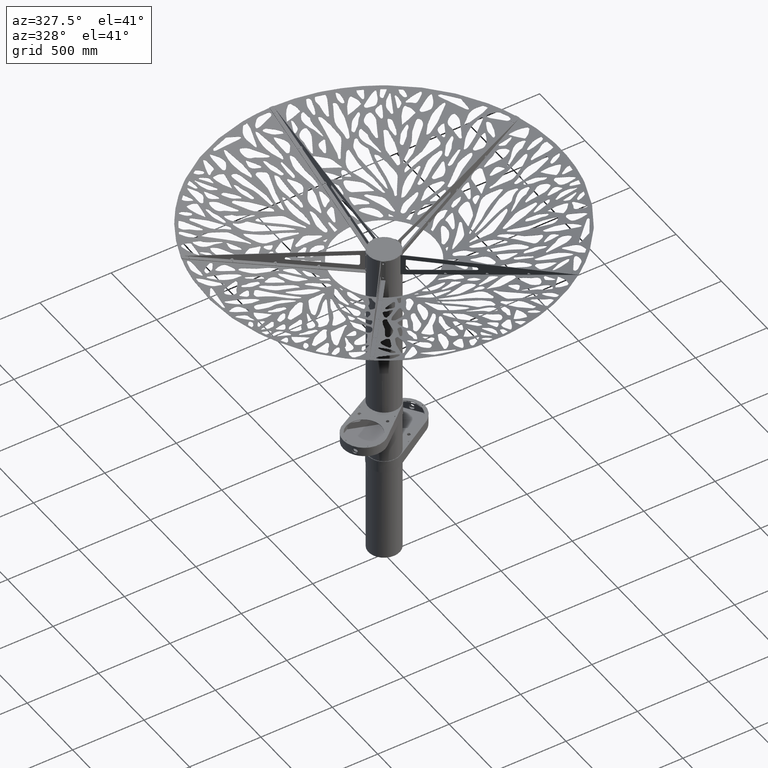
[diagram: clean part render]
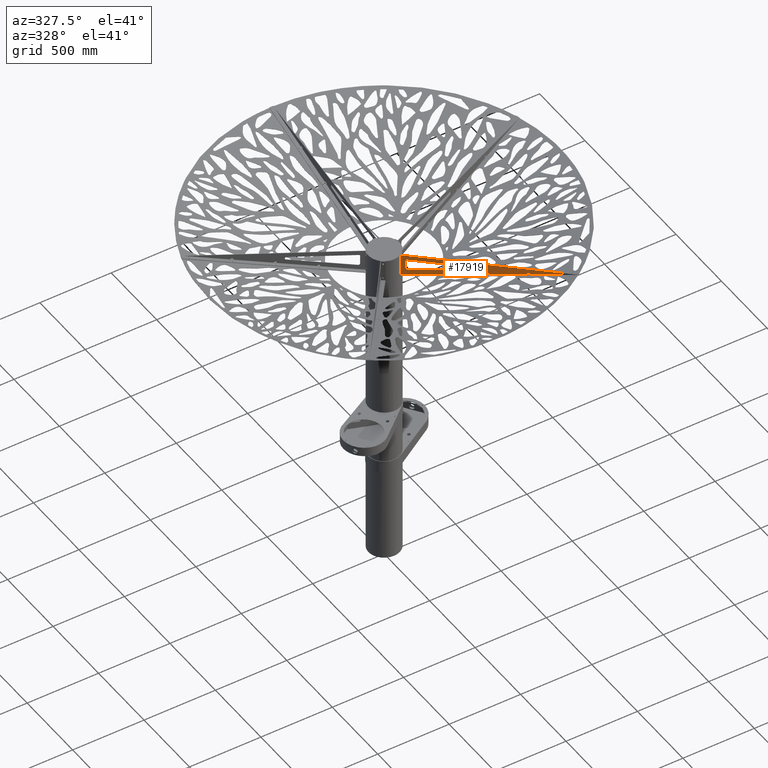
[diagram: same view with one face highlighted and labeled with its STEP entity id]
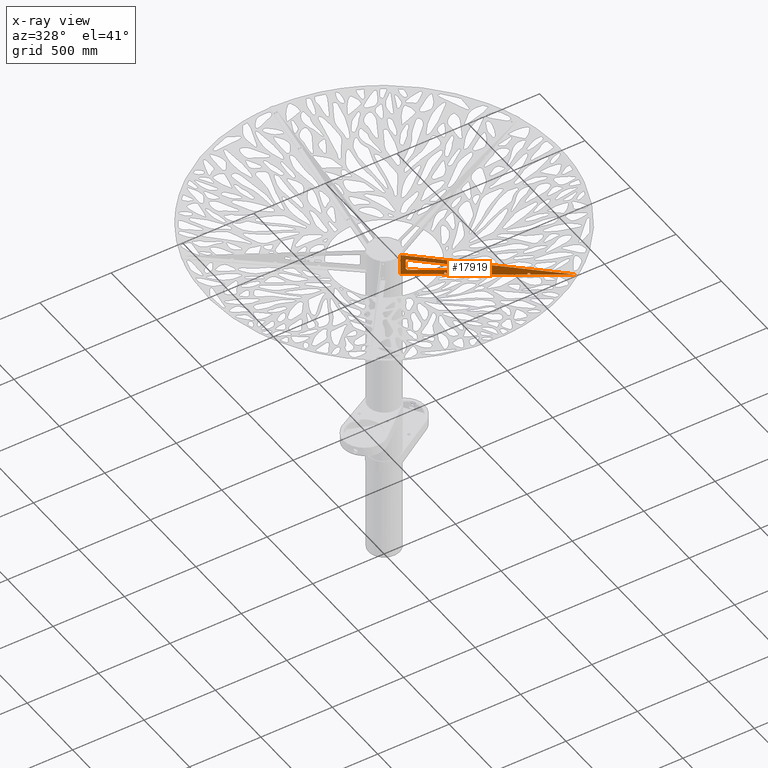
[diagram: x-ray of the same camera — body ghosted, the highlighted face saturated]
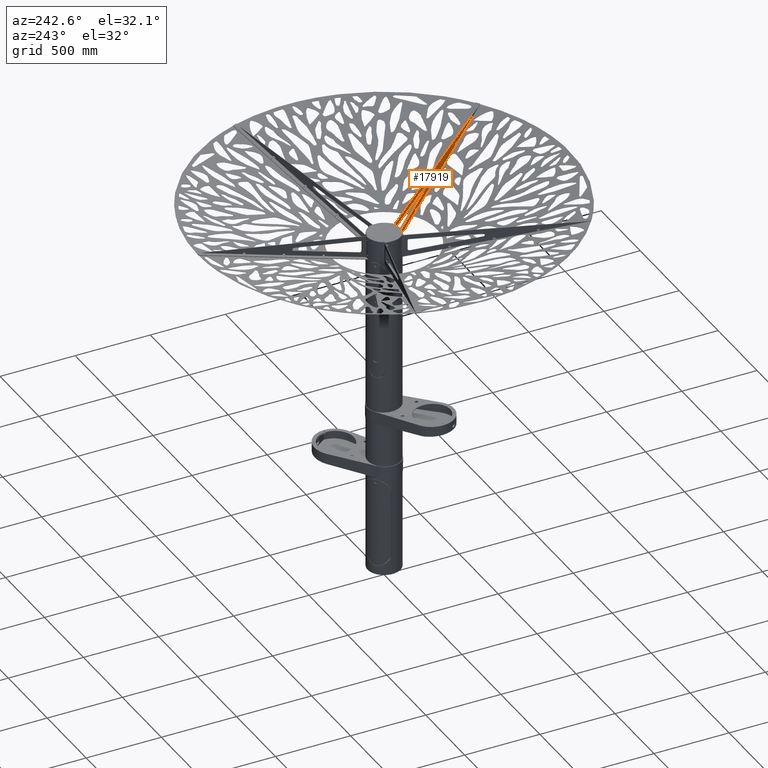
[diagram: same view with one face highlighted and labeled with its STEP entity id]
A machine part, auxiliary view. The second image highlights one B-rep face of the part: STEP entity #17919.
The next image is the same camera in x-ray: the body ghosted, the highlighted face saturated — about 0% of this face is hidden behind the body in this view.
A second angle (auxiliary view) of the same face is appended — the face is thin or edge-on in the first view.
In plain terms, the highlighted planar face has unit normal (0.809, 0.5878, 0).
Its self-contained STEP definition (entity closure, byte-faithful):
#18 = ORIENTED_EDGE ( 'NONE', *, *, #91109, .F. ) ;
#212 = VERTEX_POINT ( 'NONE', #16095 ) ;
#619 = CARTESIAN_POINT ( 'NONE',  ( -329.3151506300889650, 220.7821437993836184, 260.2254362326830233 ) ) ;
#627 = CARTESIAN_POINT ( 'NONE',  ( -124.1039514031340616, 71.68745865749943391, 353.5539966579350448 ) ) ;
#1065 = FACE_BOUND ( 'NONE', #89006, .T. ) ;
#1600 = DIRECTION ( 'NONE',  ( -0.5877853082349320246, -0.8090169537303689706, 0.000000000000000000 ) ) ;
#2447 = ORIENTED_EDGE ( 'NONE', *, *, #14208, .F. ) ;
#2615 = VERTEX_POINT ( 'NONE', #29585 ) ;
#3348 = ORIENTED_EDGE ( 'NONE', *, *, #20430, .F. ) ;
#3393 = CARTESIAN_POINT ( 'NONE',  ( -329.3151506300889650, 220.7821437993836184, 260.2254362326830233 ) ) ;
#4549 = CARTESIAN_POINT ( 'NONE',  ( -535.8592080316078636, 370.8452072297041013, 179.8007141444610397 ) ) ;
#4627 = CARTESIAN_POINT ( 'NONE',  ( -1011.482896244980452, 716.4060942930248075, -1.907812168868874503 ) ) ;
#4736 = EDGE_CURVE ( 'NONE', #77571, #15020, #59478, .T. ) ;
#4852 = CARTESIAN_POINT ( 'NONE',  ( -535.5101935955783574, 370.5916333621673289, 176.8952019672649953 ) ) ;
#5734 = CARTESIAN_POINT ( 'NONE',  ( -97.40639193003198670, 52.29054348574679523, 203.5539966579349880 ) ) ;
#7511 = CARTESIAN_POINT ( 'NONE',  ( -132.1941209404377275, 77.56531173984889449, 294.9480939190580102 ) ) ;
#7668 = CIRCLE ( 'NONE', #76660, 10.00000000000000355 ) ;
#8674 = EDGE_CURVE ( 'NONE', #82497, #87385, #44195, .T. ) ;
#9239 = VERTEX_POINT ( 'NONE', #30767 ) ;
#10976 = EDGE_LOOP ( 'NONE', ( #51188, #21643, #65362, #22550, #18802, #51377 ) ) ;
#11137 = CIRCLE ( 'NONE', #90631, 10.00000000000000711 ) ;
#11150 = LINE ( 'NONE', #4549, #43435 ) ;
#11235 = EDGE_CURVE ( 'NONE', #31535, #18586, #72118, .T. ) ;
#11552 = VERTEX_POINT ( 'NONE', #18576 ) ;
#11660 = VERTEX_POINT ( 'NONE', #5734 ) ;
#11747 = CARTESIAN_POINT ( 'NONE',  ( -97.40639193003200091, 52.29054348574680233, 353.5539966579350448 ) ) ;
#12269 = EDGE_CURVE ( 'NONE', #14124, #2615, #42250, .T. ) ;
#12829 = FACE_OUTER_BOUND ( 'NONE', #34550, .T. ) ;
#13757 = DIRECTION ( 'NONE',  ( -0.8090169537303694147, 0.5877853082349313585, 0.000000000000000000 ) ) ;
#14124 = VERTEX_POINT ( 'NONE', #4627 ) ;
#14208 = EDGE_CURVE ( 'NONE', #18147, #11552, #7668, .T. ) ;
#14319 = DIRECTION ( 'NONE',  ( -0.5877853082349320246, -0.8090169537303689706, 0.000000000000000000 ) ) ;
#15020 = VERTEX_POINT ( 'NONE', #81062 ) ;
#15392 = DIRECTION ( 'NONE',  ( 0.8090169537303678604, -0.5877853082349335789, 0.000000000000000000 ) ) ;
#16095 = CARTESIAN_POINT ( 'NONE',  ( -124.1039514031339337, 71.68745865749944812, 236.3905626378430043 ) ) ;
#16288 = DIRECTION ( 'NONE',  ( 0.8090169537303705249, -0.5877853082349299152, 0.000000000000000000 ) ) ;
#16808 = VERTEX_POINT ( 'NONE', #17295 ) ;
#17025 = CARTESIAN_POINT ( 'NONE',  ( -551.2929601815916385, 382.0584861639339351, 173.7989085731329055 ) ) ;
#17295 = CARTESIAN_POINT ( 'NONE',  ( -765.5781726843849810, 537.7458288090674614, 90.46867430771490604 ) ) ;
#17919 = ADVANCED_FACE ( 'NONE', ( #12829, #1065, #51320, #29671, #29209 ), #49917, .F. ) ;
#18147 = VERTEX_POINT ( 'NONE', #89391 ) ;
#18205 = CARTESIAN_POINT ( 'NONE',  ( -543.6003631328820802, 376.4694864445166900, 176.8952019672649953 ) ) ;
#18576 = CARTESIAN_POINT ( 'NONE',  ( -750.1444205344012062, 526.5325498748371729, 96.47047987904316813 ) ) ;
#18586 = VERTEX_POINT ( 'NONE', #4852 ) ;
#18802 = ORIENTED_EDGE ( 'NONE', *, *, #34846, .F. ) ;
#20101 = VECTOR ( 'NONE', #77250, 999.9999999999998863 ) ;
#20170 = VECTOR ( 'NONE', #46028, 999.9999999999998863 ) ;
#20430 = EDGE_CURVE ( 'NONE', #9239, #61917, #64878, .T. ) ;
#21483 = AXIS2_PLACEMENT_3D ( 'NONE', #18205, #87945, #44682 ) ;
#21643 = ORIENTED_EDGE ( 'NONE', *, *, #21738, .F. ) ;
#21738 = EDGE_CURVE ( 'NONE', #212, #34013, #85233, .T. ) ;
#22550 = ORIENTED_EDGE ( 'NONE', *, *, #4736, .F. ) ;
#22733 = CARTESIAN_POINT ( 'NONE',  ( -489.0345442394131510, 336.8250926781054204, 156.1816539880389882 ) ) ;
#23624 = CARTESIAN_POINT ( 'NONE',  ( -337.0077476787979549, 226.3711435188004941, 257.1291428385507629 ) ) ;
#25479 = VERTEX_POINT ( 'NONE', #28231 ) ;
#25806 = AXIS2_PLACEMENT_3D ( 'NONE', #92251, #71997, #13757 ) ;
#27584 = CIRCLE ( 'NONE', #56135, 10.00000000000000355 ) ;
#27842 = DIRECTION ( 'NONE',  ( 0.8090169537303690817, -0.5877853082349316916, 0.000000000000000000 ) ) ;
#28231 = CARTESIAN_POINT ( 'NONE',  ( -535.8592080316077499, 370.8452072297038171, 179.8007141444610397 ) ) ;
#28307 = DIRECTION ( 'NONE',  ( -0.5877853082349309144, -0.8090169537303697478, 1.694065894508599754E-17 ) ) ;
#29209 = FACE_BOUND ( 'NONE', #10976, .T. ) ;
#29244 = DIRECTION ( 'NONE',  ( -1.164236848858976974E-32, -1.602434316898700134E-32, 1.000000000000000000 ) ) ;
#29585 = CARTESIAN_POINT ( 'NONE',  ( -97.40639193003194407, 52.29054348574667443, 353.5539966579351017 ) ) ;
#29605 = CARTESIAN_POINT ( 'NONE',  ( -134.6220235687030709, 79.32928650964690576, 304.4871547658689792 ) ) ;
#29671 = FACE_BOUND ( 'NONE', #86739, .T. ) ;
#30253 = DIRECTION ( 'NONE',  ( 0.8090169537303678604, -0.5877853082349335789, 0.000000000000000000 ) ) ;
#30307 = EDGE_CURVE ( 'NONE', #2615, #11660, #61560, .T. ) ;
#30478 = AXIS2_PLACEMENT_3D ( 'NONE', #7511, #36138, #64833 ) ;
#30767 = CARTESIAN_POINT ( 'NONE',  ( -321.2249810927852991, 214.9042907170343142, 260.2254362326830233 ) ) ;
#31121 = CIRCLE ( 'NONE', #41649, 9.999999999999989342 ) ;
#31535 = VERTEX_POINT ( 'NONE', #17025 ) ;
#32194 = DIRECTION ( 'NONE',  ( -0.5877853082349309144, -0.8090169537303697478, 1.694065894508599754E-17 ) ) ;
#32573 = ORIENTED_EDGE ( 'NONE', *, *, #12269, .F. ) ;
#34013 = VERTEX_POINT ( 'NONE', #92667 ) ;
#34550 = EDGE_LOOP ( 'NONE', ( #52358, #60203, #32573 ) ) ;
#34579 = AXIS2_PLACEMENT_3D ( 'NONE', #87739, #32194, #16288 ) ;
#34846 = EDGE_CURVE ( 'NONE', #87385, #77571, #47807, .T. ) ;
#34899 = VECTOR ( 'NONE', #89221, 1000.000000000000114 ) ;
#35894 = CARTESIAN_POINT ( 'NONE',  ( -132.1941209404377560, 77.56531173984886607, 236.3905626378430043 ) ) ;
#36138 = DIRECTION ( 'NONE',  ( -0.5877853082349313585, -0.8090169537303694147, 1.518806116043010830E-17 ) ) ;
#36969 = DIRECTION ( 'NONE',  ( -0.5877853082349309144, -0.8090169537303697478, 1.694065894508599754E-17 ) ) ;
#37719 = DIRECTION ( 'NONE',  ( 0.8090169537303678604, -0.5877853082349335789, 0.000000000000000000 ) ) ;
#38263 = ORIENTED_EDGE ( 'NONE', *, *, #57238, .F. ) ;
#38300 = VECTOR ( 'NONE', #72859, 1000.000000000000227 ) ;
#40118 = ORIENTED_EDGE ( 'NONE', *, *, #53254, .F. ) ;
#40839 = CARTESIAN_POINT ( 'NONE',  ( -1011.482896244980225, 716.4060942930248075, -1.907812168868538993 ) ) ;
#41649 = AXIS2_PLACEMENT_3D ( 'NONE', #619, #28307, #27842 ) ;
#41664 = VECTOR ( 'NONE', #81104, 1000.000000000000227 ) ;
#42250 = LINE ( 'NONE', #40839, #73652 ) ;
#42740 = ORIENTED_EDGE ( 'NONE', *, *, #77071, .F. ) ;
#43435 = VECTOR ( 'NONE', #89186, 1000.000000000000341 ) ;
#44141 = CARTESIAN_POINT ( 'NONE',  ( -321.5739955288146916, 215.1578645845708024, 263.1309484098789540 ) ) ;
#44195 = LINE ( 'NONE', #29605, #38300 ) ;
#44682 = DIRECTION ( 'NONE',  ( 0.8090169537303705249, -0.5877853082349299152, 0.000000000000000000 ) ) ;
#45482 = LINE ( 'NONE', #73677, #34899 ) ;
#45621 = CARTESIAN_POINT ( 'NONE',  ( -491.4624468676783522, 338.5890674479037443, 165.7207148348509804 ) ) ;
#46028 = DIRECTION ( 'NONE',  ( -0.7717261947736279160, 0.5606919820115016106, -0.3001052842057775893 ) ) ;
#46030 = EDGE_CURVE ( 'NONE', #25479, #31535, #11150, .T. ) ;
#46106 = ORIENTED_EDGE ( 'NONE', *, *, #80937, .F. ) ;
#46280 = AXIS2_PLACEMENT_3D ( 'NONE', #22733, #1600, #37719 ) ;
#47807 = CIRCLE ( 'NONE', #46280, 10.00000000000000355 ) ;
#49917 = PLANE ( 'NONE',  #25806 ) ;
#51188 = ORIENTED_EDGE ( 'NONE', *, *, #64592, .F. ) ;
#51320 = FACE_BOUND ( 'NONE', #78581, .T. ) ;
#51377 = ORIENTED_EDGE ( 'NONE', *, *, #8674, .F. ) ;
#52358 = ORIENTED_EDGE ( 'NONE', *, *, #91223, .F. ) ;
#53254 = EDGE_CURVE ( 'NONE', #18586, #25479, #81536, .T. ) ;
#53629 = ORIENTED_EDGE ( 'NONE', *, *, #11235, .F. ) ;
#56135 = AXIS2_PLACEMENT_3D ( 'NONE', #59422, #65559, #30253 ) ;
#57238 = EDGE_CURVE ( 'NONE', #73643, #9239, #31121, .T. ) ;
#57252 = CARTESIAN_POINT ( 'NONE',  ( -487.5871085352691239, 335.7734689295703561, 146.3430048239569032 ) ) ;
#58856 = DIRECTION ( 'NONE',  ( 0.8090169537303690817, -0.5877853082349316916, 0.000000000000000000 ) ) ;
#59026 = ORIENTED_EDGE ( 'NONE', *, *, #46030, .F. ) ;
#59422 = CARTESIAN_POINT ( 'NONE',  ( -757.8855756356761049, 532.1568290896503868, 93.56496770184730849 ) ) ;
#59478 = LINE ( 'NONE', #73562, #41664 ) ;
#60203 = ORIENTED_EDGE ( 'NONE', *, *, #30307, .F. ) ;
#61560 = LINE ( 'NONE', #11747, #65523 ) ;
#61917 = VERTEX_POINT ( 'NONE', #44141 ) ;
#62941 = DIRECTION ( 'NONE',  ( 0.7717261947736284711, -0.5606919820115013886, 0.3001052842057763126 ) ) ;
#64592 = EDGE_CURVE ( 'NONE', #34013, #82497, #86106, .T. ) ;
#64833 = DIRECTION ( 'NONE',  ( -0.8090169537303690817, 0.5877853082349316916, 0.000000000000000000 ) ) ;
#64878 = CIRCLE ( 'NONE', #72365, 9.999999999999989342 ) ;
#65362 = ORIENTED_EDGE ( 'NONE', *, *, #86247, .F. ) ;
#65523 = VECTOR ( 'NONE', #76569, 1000.000000000000000 ) ;
#65559 = DIRECTION ( 'NONE',  ( -0.5877853082349309144, -0.8090169537303697478, 1.694065894508599754E-17 ) ) ;
#67293 = DIRECTION ( 'NONE',  ( -0.5877853082349309144, -0.8090169537303697478, 1.694065894508599754E-17 ) ) ;
#71792 = CARTESIAN_POINT ( 'NONE',  ( -134.6220235687030424, 79.32928650964703365, 304.4871547658694908 ) ) ;
#71997 = DIRECTION ( 'NONE',  ( 0.5877853082349313585, 0.8090169537303694147, 1.980717844675430825E-32 ) ) ;
#72118 = CIRCLE ( 'NONE', #34579, 9.999999999999971578 ) ;
#72365 = AXIS2_PLACEMENT_3D ( 'NONE', #3393, #67293, #58856 ) ;
#72859 = DIRECTION ( 'NONE',  ( -0.7717261947736289152, 0.5606919820115017217, -0.3001052842057746473 ) ) ;
#73158 = CARTESIAN_POINT ( 'NONE',  ( -757.8855756356761049, 532.1568290896503868, 93.56496770184730849 ) ) ;
#73562 = CARTESIAN_POINT ( 'NONE',  ( -487.5871085352687828, 335.7734689295702992, 146.3430048239569885 ) ) ;
#73643 = VERTEX_POINT ( 'NONE', #23624 ) ;
#73652 = VECTOR ( 'NONE', #62941, 1000.000000000000114 ) ;
#73677 = CARTESIAN_POINT ( 'NONE',  ( -97.40639193003200091, 52.29054348574680233, 203.5539966579349880 ) ) ;
#75150 = CARTESIAN_POINT ( 'NONE',  ( -321.5739955288150327, 215.1578645845708877, 263.1309484098790108 ) ) ;
#76569 = DIRECTION ( 'NONE',  ( 1.164236848858976974E-32, 1.602434316898700134E-32, -1.000000000000000000 ) ) ;
#76660 = AXIS2_PLACEMENT_3D ( 'NONE', #73158, #36969, #15392 ) ;
#77071 = EDGE_CURVE ( 'NONE', #61917, #73643, #81767, .T. ) ;
#77250 = DIRECTION ( 'NONE',  ( -0.7717261947736292482, 0.5606919820115043862, -0.3001052842057692072 ) ) ;
#77285 = DIRECTION ( 'NONE',  ( 0.8090169537303690817, -0.5877853082349319136, 0.000000000000000000 ) ) ;
#77571 = VERTEX_POINT ( 'NONE', #57252 ) ;
#78581 = EDGE_LOOP ( 'NONE', ( #53629, #59026, #40118 ) ) ;
#80937 = EDGE_CURVE ( 'NONE', #16808, #18147, #27584, .T. ) ;
#81062 = CARTESIAN_POINT ( 'NONE',  ( -130.7466852362940699, 76.51368799131381593, 226.5519134737610898 ) ) ;
#81104 = DIRECTION ( 'NONE',  ( 0.7959633975547303342, -0.5783013431525170223, 0.1789129013266654578 ) ) ;
#81536 = CIRCLE ( 'NONE', #21483, 9.999999999999971578 ) ;
#81767 = LINE ( 'NONE', #75150, #20170 ) ;
#82497 = VERTEX_POINT ( 'NONE', #71792 ) ;
#85233 = LINE ( 'NONE', #627, #87514 ) ;
#86106 = CIRCLE ( 'NONE', #30478, 9.999999999999989342 ) ;
#86247 = EDGE_CURVE ( 'NONE', #15020, #212, #11137, .T. ) ;
#86739 = EDGE_LOOP ( 'NONE', ( #46106, #18, #2447 ) ) ;
#87385 = VERTEX_POINT ( 'NONE', #45621 ) ;
#87514 = VECTOR ( 'NONE', #29244, 1000.000000000000000 ) ;
#87739 = CARTESIAN_POINT ( 'NONE',  ( -543.6003631328820802, 376.4694864445166900, 176.8952019672649953 ) ) ;
#87945 = DIRECTION ( 'NONE',  ( -0.5877853082349309144, -0.8090169537303697478, 1.694065894508599754E-17 ) ) ;
#89006 = EDGE_LOOP ( 'NONE', ( #38263, #42740, #3348 ) ) ;
#89186 = DIRECTION ( 'NONE',  ( -0.7717261947736343553, 0.5606919820115027209, -0.3001052842057587156 ) ) ;
#89221 = DIRECTION ( 'NONE',  ( -0.7959633975547303342, 0.5783013431525170223, -0.1789129013266647916 ) ) ;
#89391 = CARTESIAN_POINT ( 'NONE',  ( -749.7954060983724958, 526.2789760073010257, 93.56496770184730849 ) ) ;
#90631 = AXIS2_PLACEMENT_3D ( 'NONE', #35894, #14319, #77285 ) ;
#91109 = EDGE_CURVE ( 'NONE', #11552, #16808, #91375, .T. ) ;
#91223 = EDGE_CURVE ( 'NONE', #11660, #14124, #45482, .T. ) ;
#91375 = LINE ( 'NONE', #92316, #20101 ) ;
#92251 = CARTESIAN_POINT ( 'NONE',  ( -97.40639193003200091, 52.29054348574680233, 353.5539966579350448 ) ) ;
#92316 = CARTESIAN_POINT ( 'NONE',  ( -750.1444205344007514, 526.5325498748371729, 96.47047987904328181 ) ) ;
#92667 = CARTESIAN_POINT ( 'NONE',  ( -124.1039514031340474, 71.68745865749950497, 294.9480939190580102 ) ) ;